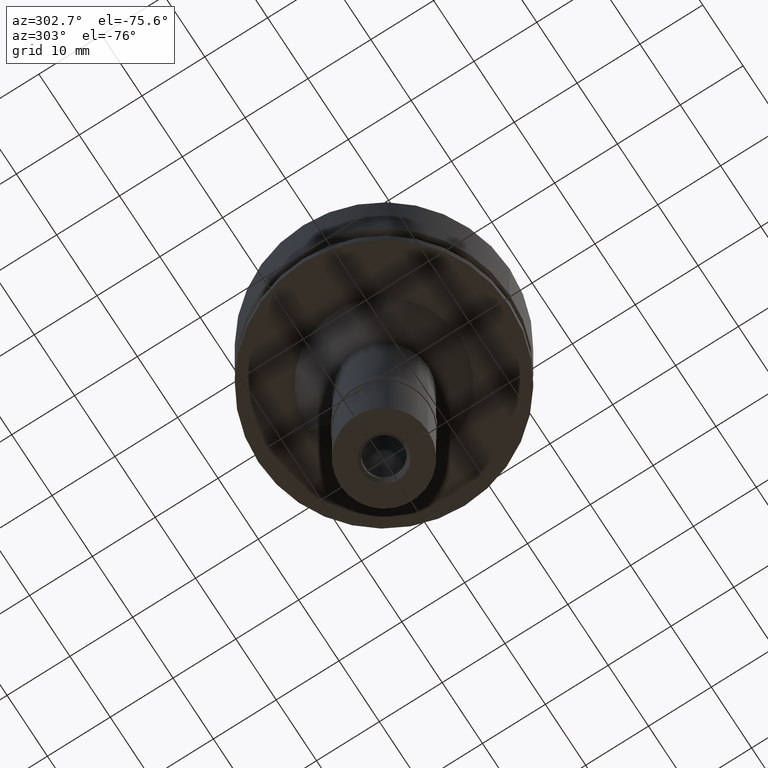
[diagram: clean part render]
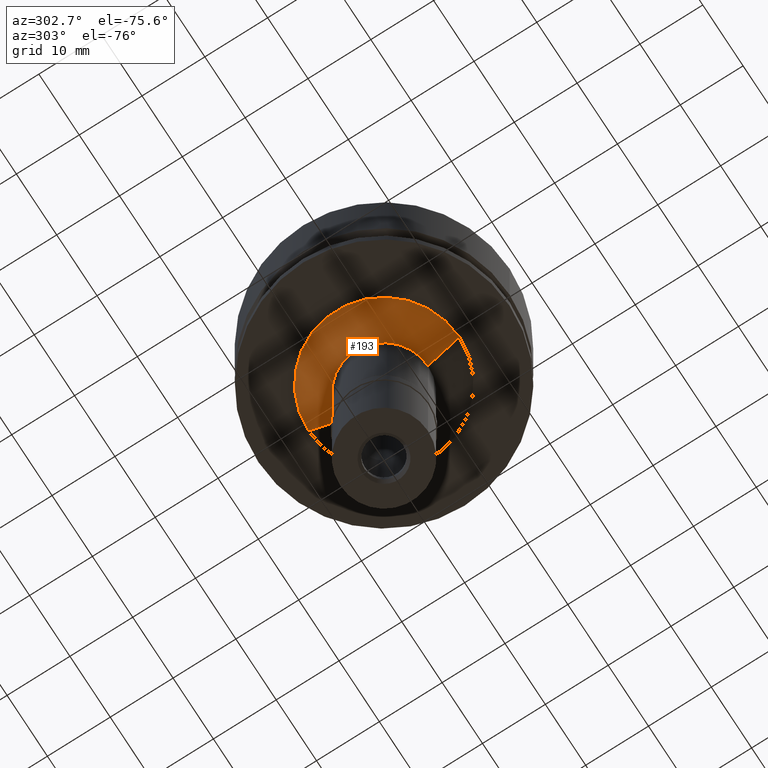
[diagram: same view with one face highlighted and labeled with its STEP entity id]
A machine part, auxiliary view. The second image highlights one B-rep face of the part: STEP entity #193.
In plain terms, the highlighted conical surface has half-angle 45 deg.
Its self-contained STEP definition (entity closure, byte-faithful):
#53 = ORIENTED_EDGE ( 'NONE', *, *, #1981, .T. ) ;
#153 = FACE_OUTER_BOUND ( 'NONE', #1128, .T. ) ;
#193 = ADVANCED_FACE ( 'NONE', ( #153 ), #227, .T. ) ;
#227 = CONICAL_SURFACE ( 'NONE', #1485, 9.500000000000000000, 0.7853981633972997312 ) ;
#330 = DIRECTION ( 'NONE',  ( 0.0000000000000000000, -1.000000000000000000, 0.0000000000000000000 ) ) ;
#356 = EDGE_CURVE ( 'NONE', #2360, #742, #366, .T. ) ;
#366 = CIRCLE ( 'NONE', #2243, 7.000000000000000000 ) ;
#390 = EDGE_CURVE ( 'NONE', #850, #2360, #1084, .T. ) ;
#439 = LINE ( 'NONE', #1450, #2462 ) ;
#448 = AXIS2_PLACEMENT_3D ( 'NONE', #1198, #2420, #330 ) ;
#490 = ORIENTED_EDGE ( 'NONE', *, *, #390, .F. ) ;
#505 = CARTESIAN_POINT ( 'NONE',  ( 0.0000000000000000000, 12.00000000000000000, -20.00000000000000000 ) ) ;
#534 = CARTESIAN_POINT ( 'NONE',  ( 0.0000000000000000000, 0.0000000000000000000, -25.00000000000000000 ) ) ;
#642 = DIRECTION ( 'NONE',  ( 0.0000000000000000000, -0.7071067811865474617, -0.7071067811865474617 ) ) ;
#742 = VERTEX_POINT ( 'NONE', #2224 ) ;
#745 = VECTOR ( 'NONE', #2340, 1000.000000000000114 ) ;
#850 = VERTEX_POINT ( 'NONE', #1223 ) ;
#856 = EDGE_CURVE ( 'NONE', #1107, #742, #439, .T. ) ;
#988 = DIRECTION ( 'NONE',  ( 0.0000000000000000000, 0.0000000000000000000, 1.000000000000000000 ) ) ;
#1084 = LINE ( 'NONE', #1221, #745 ) ;
#1107 = VERTEX_POINT ( 'NONE', #505 ) ;
#1128 = EDGE_LOOP ( 'NONE', ( #2459, #490, #53, #1872 ) ) ;
#1198 = CARTESIAN_POINT ( 'NONE',  ( 0.0000000000000000000, 0.0000000000000000000, -20.00000000000000000 ) ) ;
#1221 = CARTESIAN_POINT ( 'NONE',  ( 0.0000000000000000000, -12.00000000000000000, -20.00000000000000000 ) ) ;
#1223 = CARTESIAN_POINT ( 'NONE',  ( 0.0000000000000000000, -12.00000000000000000, -20.00000000000000000 ) ) ;
#1362 = DIRECTION ( 'NONE',  ( 0.0000000000000000000, 0.0000000000000000000, -1.000000000000000000 ) ) ;
#1377 = CARTESIAN_POINT ( 'NONE',  ( 0.0000000000000000000, 0.0000000000000000000, -22.50000000000000000 ) ) ;
#1450 = CARTESIAN_POINT ( 'NONE',  ( 0.0000000000000000000, 12.00000000000000000, -20.00000000000000000 ) ) ;
#1485 = AXIS2_PLACEMENT_3D ( 'NONE', #1377, #988, #2666 ) ;
#1738 = CARTESIAN_POINT ( 'NONE',  ( 0.0000000000000000000, -7.000000000000000000, -25.00000000000000000 ) ) ;
#1872 = ORIENTED_EDGE ( 'NONE', *, *, #856, .T. ) ;
#1963 = CIRCLE ( 'NONE', #448, 12.00000000000000000 ) ;
#1981 = EDGE_CURVE ( 'NONE', #850, #1107, #1963, .T. ) ;
#2201 = DIRECTION ( 'NONE',  ( 0.0000000000000000000, -1.000000000000000000, 0.0000000000000000000 ) ) ;
#2224 = CARTESIAN_POINT ( 'NONE',  ( 0.0000000000000000000, 7.000000000000000000, -25.00000000000000000 ) ) ;
#2243 = AXIS2_PLACEMENT_3D ( 'NONE', #534, #1362, #2201 ) ;
#2340 = DIRECTION ( 'NONE',  ( 0.0000000000000000000, 0.7071067811865474617, -0.7071067811865474617 ) ) ;
#2360 = VERTEX_POINT ( 'NONE', #1738 ) ;
#2420 = DIRECTION ( 'NONE',  ( 0.0000000000000000000, 0.0000000000000000000, -1.000000000000000000 ) ) ;
#2459 = ORIENTED_EDGE ( 'NONE', *, *, #356, .F. ) ;
#2462 = VECTOR ( 'NONE', #642, 1000.000000000000114 ) ;
#2666 = DIRECTION ( 'NONE',  ( 0.0000000000000000000, 1.000000000000000000, 0.0000000000000000000 ) ) ;